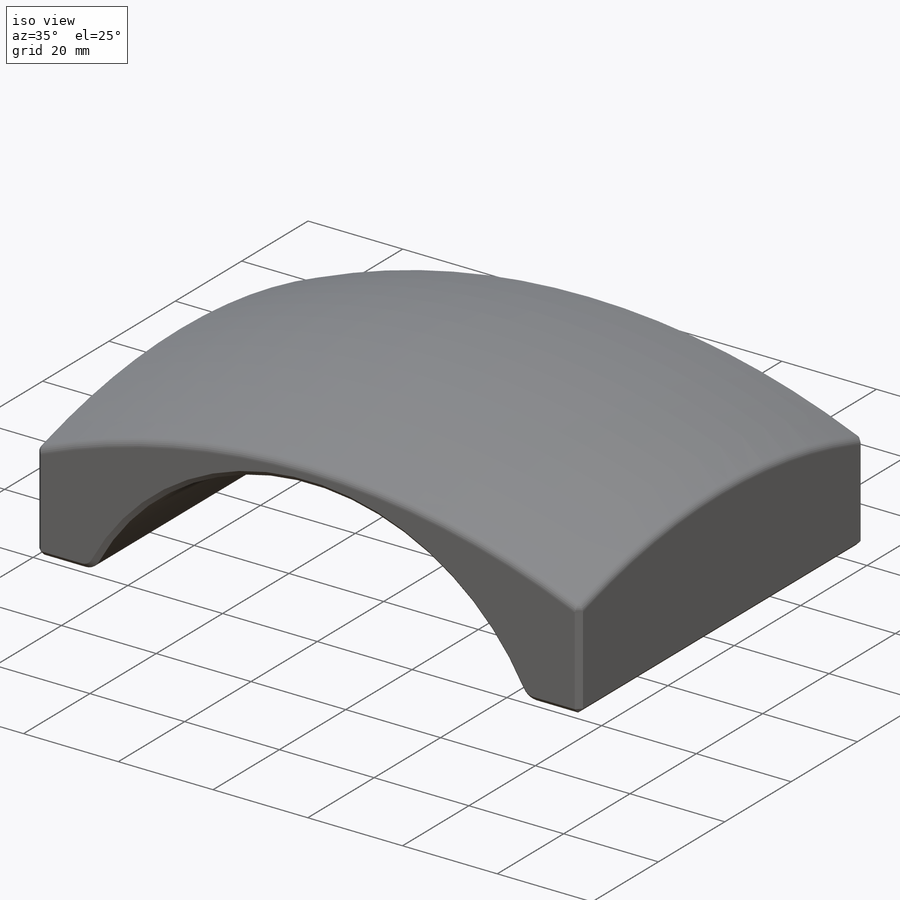
[diagram: iso view]
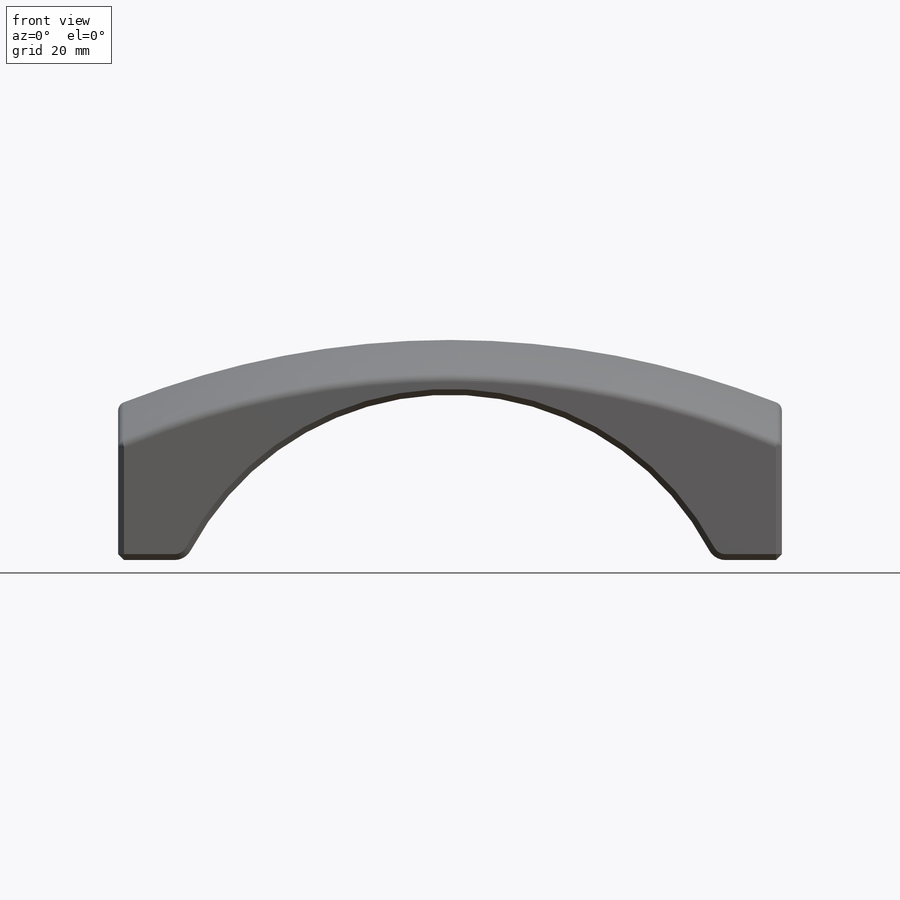
[diagram: front view]
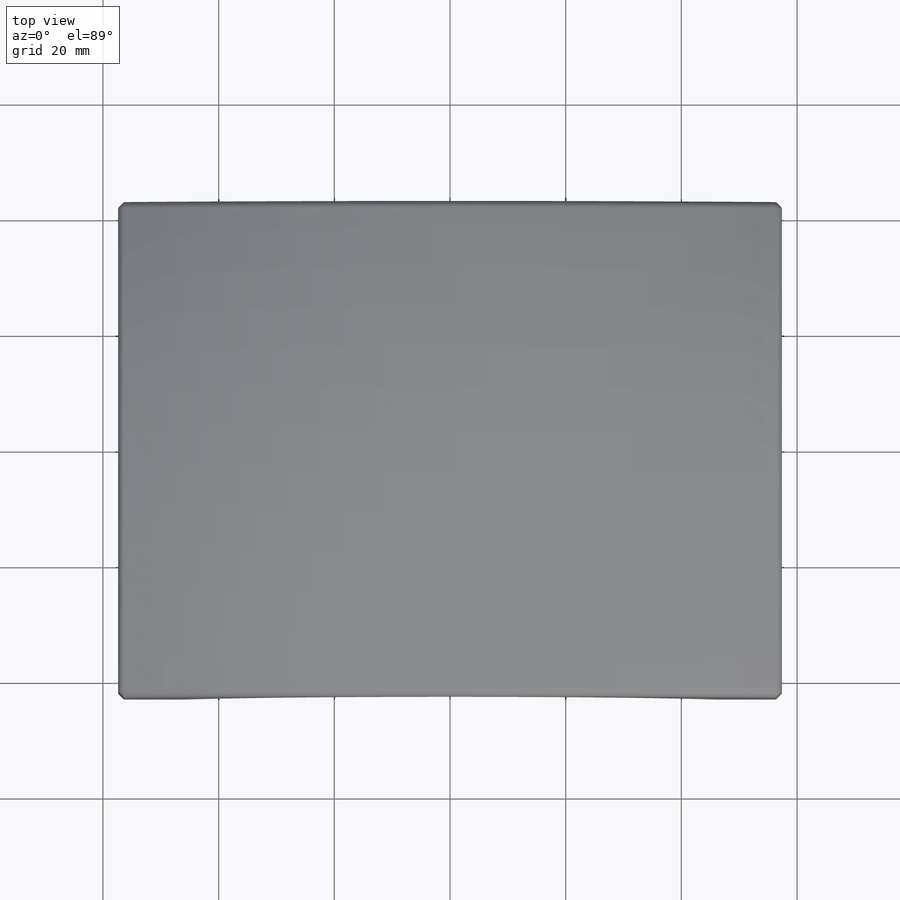
[diagram: top view]
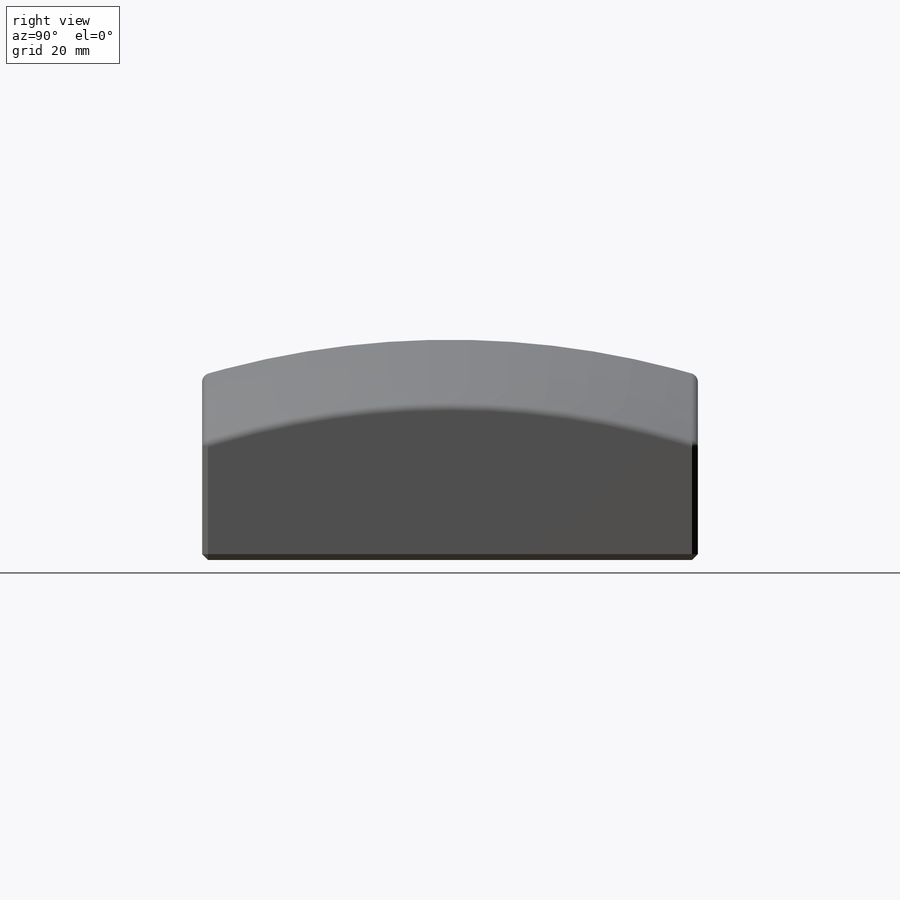
[diagram: right view]
SOLIDWORKS PART (.sldprt)
format: sldprt  version: not decoded by parser v0  size: 299,008 bytes
history: native  units: mm
features: sketch x5, cut_extrude x4, mirror x3, fillet x2, material x1, revolve x1, chamfer x1 + 1 further entry (+13 scaffold rows collapsed)
feature tree (31):
  scaffold x13  (default folders/planes/origin — collapsed)
  material  "2024-T351 AL"
  "Origin"  ID=-1
  sketch  "Sketch1"  dims[D1=152.4mm]
  revolve  "Revolve1"  Angle=360deg
  sketch  "Sketch3"  dims[D1=85.725mm]
  cut_extrude  "Extrude1"  [1 undecoded]
  mirror  "Mirror1"
  sketch  "Sketch4"  dims[D1=101.6mm D2=60.325mm]
  cut_extrude  "Extrude2"  [1 undecoded]
  sketch  "Sketch5"
  cut_extrude  "Extrude3"  [1 undecoded]
  mirror  "Mirror2"
  sketch  "Sketch11"  dims[c1.D1=~10.459648mm c2.D1=45.0deg c2.D2=22.225mm c2.D3=9.525mm]
  cut_extrude  "Extrude7"  [1 undecoded]
  mirror  "Mirror5"
  fillet  "Fillet2"  Radius=3.175mm
  fillet  "Fillet3"  Radius=1.524mm
  chamfer  "Chamfer3"  Distance=1.016mm Angle=45deg
decode coverage: 8 of 16 modeling features carry decoded parameters; 1 rows unclassified (native names shown)
note: ~ marks probable driven/reference dimensions
note: 4 parameter values undecoded
summary: no parameter record found for 4 features
note: suppression state not decoded; provenance and decode notes live in map.json
